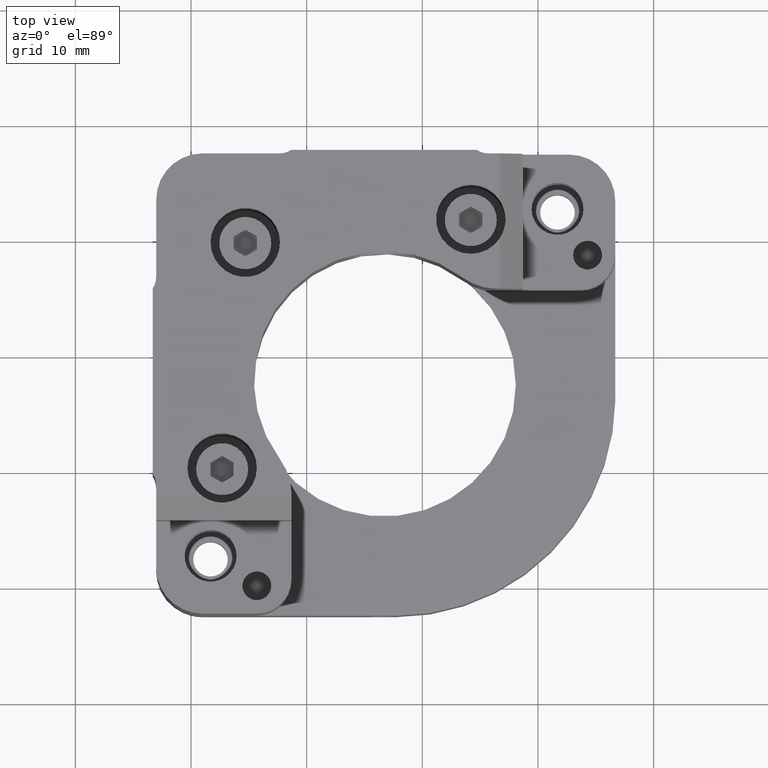
[diagram: clean part render]
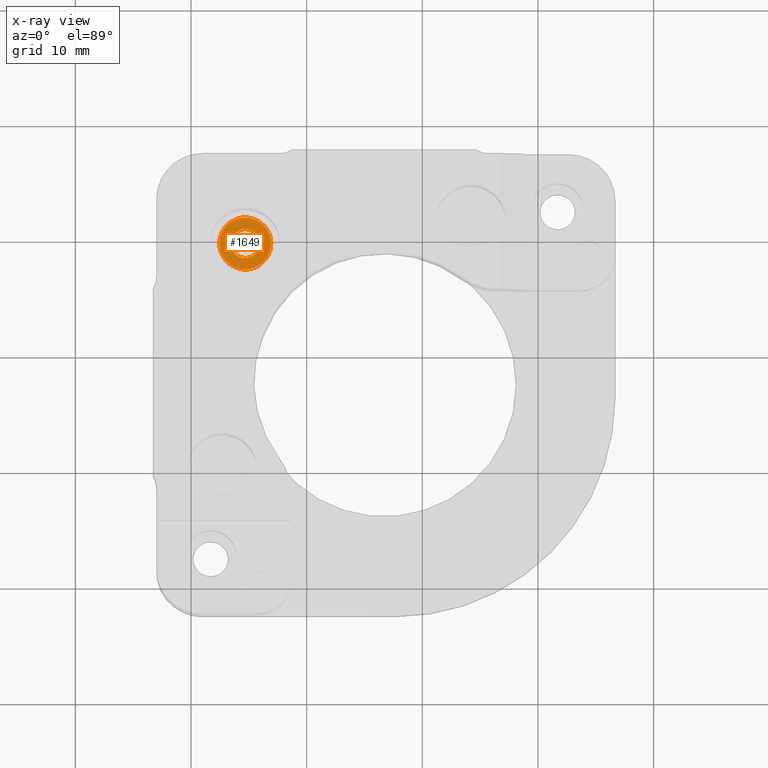
[diagram: x-ray — body ghosted, one internal face saturated and labeled with its STEP entity id]
A machine part, top view, then the same camera in x-ray: the body is ghosted and one INTERNAL B-rep face — a face not visible from any outside direction — is saturated and labeled: STEP entity #1649.
In plain terms, the highlighted planar face has unit normal (0, 0, 1).
Its self-contained STEP definition (entity closure, byte-faithful):
#158 = VERTEX_POINT ( 'NONE', #7684 ) ;
#205 = AXIS2_PLACEMENT_3D ( 'NONE', #2436, #5544, #5503 ) ;
#297 = CARTESIAN_POINT ( 'NONE',  ( -15.31367799644748651, 9.481695327361622461, 46.75006403882015604 ) ) ;
#587 = AXIS2_PLACEMENT_3D ( 'NONE', #297, #5285, #3525 ) ;
#861 = CIRCLE ( 'NONE', #205, 2.249999999999769518 ) ;
#1195 = VERTEX_POINT ( 'NONE', #2613 ) ;
#1649 = ADVANCED_FACE ( 'NONE', ( #6443, #7753 ), #7681, .F. ) ;
#2436 = CARTESIAN_POINT ( 'NONE',  ( -15.31367799644748651, 9.481695327361622461, 46.75006403882015604 ) ) ;
#2613 = CARTESIAN_POINT ( 'NONE',  ( -14.06367799644748651, 9.481695327361622461, 46.75006403882015604 ) ) ;
#2683 = CARTESIAN_POINT ( 'NONE',  ( -15.31367799644748651, 9.481695327361622461, 46.75006403882015604 ) ) ;
#2850 = ORIENTED_EDGE ( 'NONE', *, *, #8096, .F. ) ;
#2938 = EDGE_LOOP ( 'NONE', ( #3793 ) ) ;
#3343 = DIRECTION ( 'NONE',  ( 1.000000000000000000, 0.000000000000000000, -0.000000000000000000 ) ) ;
#3525 = DIRECTION ( 'NONE',  ( 1.000000000000000000, 0.000000000000000000, 0.000000000000000000 ) ) ;
#3793 = ORIENTED_EDGE ( 'NONE', *, *, #6259, .F. ) ;
#5285 = DIRECTION ( 'NONE',  ( -0.000000000000000000, -0.000000000000000000, -1.000000000000000000 ) ) ;
#5425 = AXIS2_PLACEMENT_3D ( 'NONE', #2683, #6408, #3343 ) ;
#5503 = DIRECTION ( 'NONE',  ( 1.000000000000000000, 0.000000000000000000, 0.000000000000000000 ) ) ;
#5544 = DIRECTION ( 'NONE',  ( 0.000000000000000000, 0.000000000000000000, 1.000000000000000000 ) ) ;
#6259 = EDGE_CURVE ( 'NONE', #1195, #1195, #7631, .T. ) ;
#6408 = DIRECTION ( 'NONE',  ( 0.000000000000000000, 0.000000000000000000, 1.000000000000000000 ) ) ;
#6443 = FACE_OUTER_BOUND ( 'NONE', #7714, .T. ) ;
#7631 = CIRCLE ( 'NONE', #587, 1.249999999999999334 ) ;
#7681 = PLANE ( 'NONE',  #5425 ) ;
#7684 = CARTESIAN_POINT ( 'NONE',  ( -13.06367799644771743, 9.481695327361622461, 46.75006403882015604 ) ) ;
#7714 = EDGE_LOOP ( 'NONE', ( #2850 ) ) ;
#7753 = FACE_BOUND ( 'NONE', #2938, .T. ) ;
#8096 = EDGE_CURVE ( 'NONE', #158, #158, #861, .T. ) ;